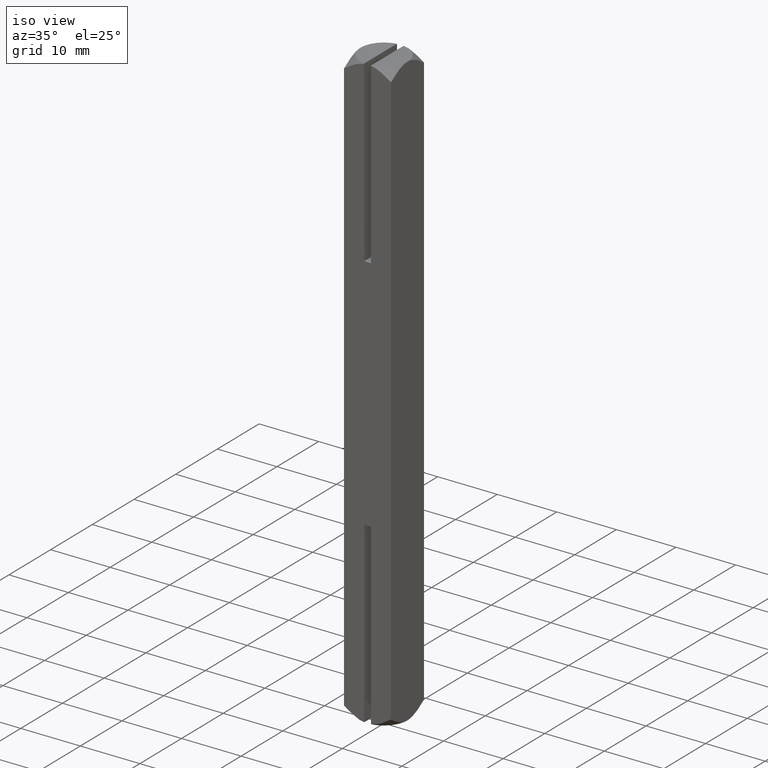
[diagram: clean part render]
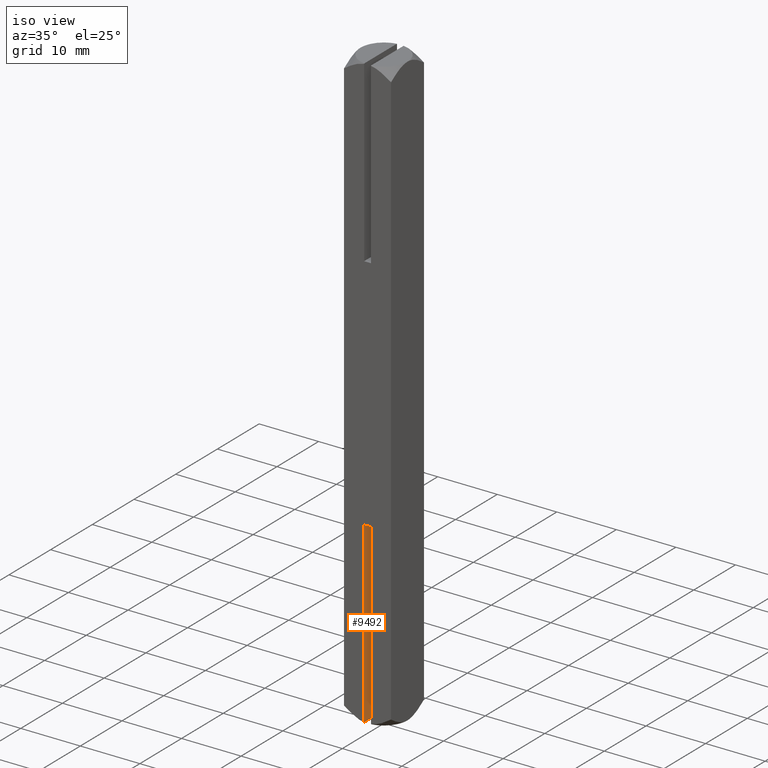
[diagram: same view with one face highlighted and labeled with its STEP entity id]
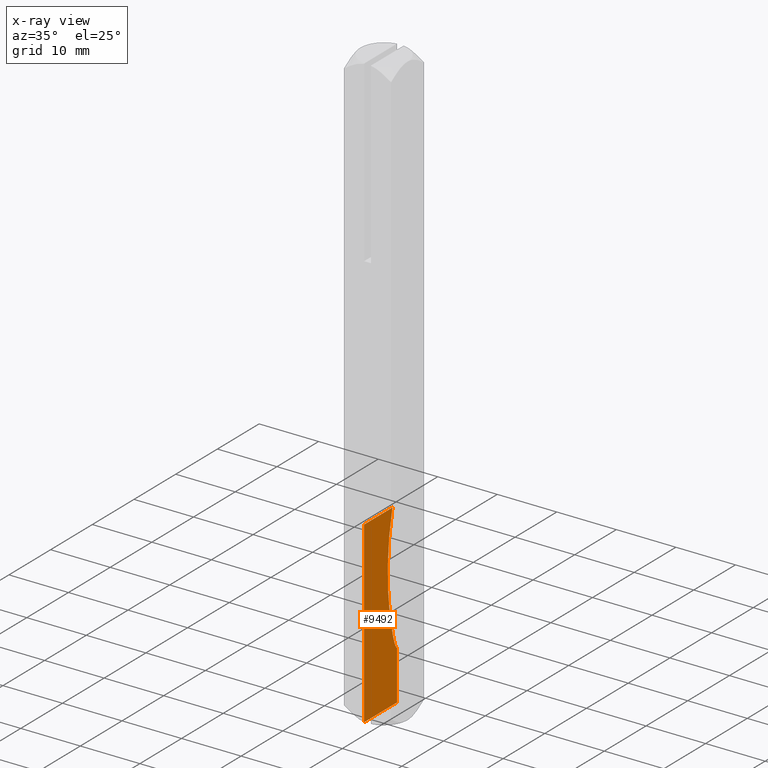
[diagram: x-ray of the same camera — body ghosted, the highlighted face saturated]
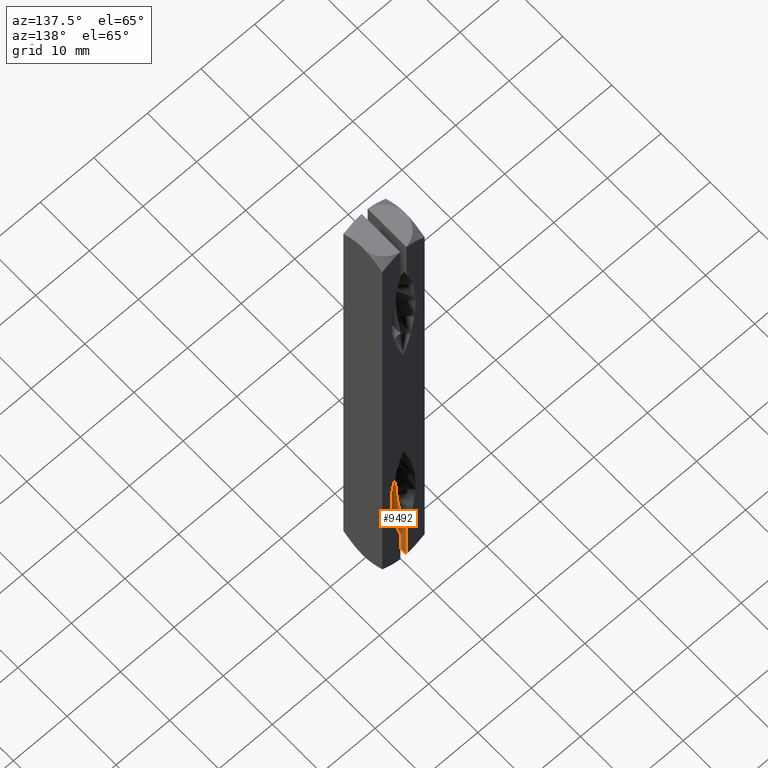
[diagram: same view with one face highlighted and labeled with its STEP entity id]
A machine part, iso view. The second image highlights one B-rep face of the part: STEP entity #9492.
The next image is the same camera in x-ray: the body ghosted, the highlighted face saturated — about 0% of this face is hidden behind the body in this view.
A second angle (auxiliary view) of the same face is appended — the face is thin or edge-on in the first view.
In plain terms, the highlighted planar face has unit normal (-1, -0, 0).
Its self-contained STEP definition (entity closure, byte-faithful):
#268 = FACE_OUTER_BOUND ( 'NONE', #10721, .T. ) ;
#554 = VECTOR ( 'NONE', #11653, 1000.000000000000000 ) ;
#727 = EDGE_CURVE ( 'NONE', #4632, #8570, #2596, .T. ) ;
#800 = CARTESIAN_POINT ( 'NONE',  ( -0.5750000000000002887, 3.935975654315071459, -49.97224620293719255 ) ) ;
#826 = CARTESIAN_POINT ( 'NONE',  ( -0.5750000000000002887, 1.790522158601205227, -31.89218784807994922 ) ) ;
#843 = CARTESIAN_POINT ( 'NONE',  ( -0.5749999999999999556, 3.949999999999999734, -49.95836812819619155 ) ) ;
#873 = CARTESIAN_POINT ( 'NONE',  ( -0.5749999999999999556, 2.999569653012168935, -39.64785277818430131 ) ) ;
#918 = CARTESIAN_POINT ( 'NONE',  ( -0.5750000000000010658, 10.00000000000000000, -50.00000000000000000 ) ) ;
#1087 = VERTEX_POINT ( 'NONE', #6215 ) ;
#1107 = EDGE_CURVE ( 'NONE', #7719, #1087, #5641, .T. ) ;
#1583 = LINE ( 'NONE', #11079, #8012 ) ;
#1757 = CARTESIAN_POINT ( 'NONE',  ( -0.5750000000000000666, 2.656006524776936217, -38.31868199677725073 ) ) ;
#1786 = CARTESIAN_POINT ( 'NONE',  ( -0.5750000000000000666, 1.717738489092452525, -30.14765667200343913 ) ) ;
#2242 = ORIENTED_EDGE ( 'NONE', *, *, #5367, .T. ) ;
#2366 = CARTESIAN_POINT ( 'NONE',  ( -0.5750000000000002887, 3.568300370325551807, -41.26436420200637656 ) ) ;
#2503 = CARTESIAN_POINT ( 'NONE',  ( -0.5750000000000001776, 2.832976762361322898, -20.00000000000000355 ) ) ;
#2583 = CARTESIAN_POINT ( 'NONE',  ( -0.5750000000000001776, 2.471219910511959661, -37.42595704450668848 ) ) ;
#2596 = LINE ( 'NONE', #9740, #11548 ) ;
#2606 = VERTEX_POINT ( 'NONE', #3558 ) ;
#2648 = CARTESIAN_POINT ( 'NONE',  ( -0.5750000000000000666, 2.001035175949065437, -24.57484465062620060 ) ) ;
#2678 = VERTEX_POINT ( 'NONE', #10123 ) ;
#2957 = CARTESIAN_POINT ( 'NONE',  ( -0.5749999999999992895, -3.949999999990744026, -49.95836812820535044 ) ) ;
#3459 = EDGE_CURVE ( 'NONE', #10817, #2678, #5707, .T. ) ;
#3558 = CARTESIAN_POINT ( 'NONE',  ( -0.5750000000000002887, 3.950000000000557066, -41.66519112057266483 ) ) ;
#3652 = DIRECTION ( 'NONE',  ( -1.000000000000000000, -1.246832498358330099E-16, 0.000000000000000000 ) ) ;
#3696 = VECTOR ( 'NONE', #11138, 1000.000000000000000 ) ;
#4310 = CARTESIAN_POINT ( 'NONE',  ( -0.5750000000000002887, 1.818738552955122989, -32.34657570468970533 ) ) ;
#4350 = AXIS2_PLACEMENT_3D ( 'NONE', #9019, #3652, #10891 ) ;
#4617 = ORIENTED_EDGE ( 'NONE', *, *, #9535, .F. ) ;
#4632 = VERTEX_POINT ( 'NONE', #2503 ) ;
#4815 = CARTESIAN_POINT ( 'NONE',  ( -0.5749999999999992895, -3.921950531116518590, -49.98612351355284744 ) ) ;
#4872 = CARTESIAN_POINT ( 'NONE',  ( -0.5749999999999990674, -3.950000000000000178, -50.00000000000000000 ) ) ;
#4996 = CARTESIAN_POINT ( 'NONE',  ( -0.5750000000000002887, 3.838175792654273000, -41.63303785578739280 ) ) ;
#5020 = ORIENTED_EDGE ( 'NONE', *, *, #7529, .T. ) ;
#5094 = EDGE_CURVE ( 'NONE', #2606, #4632, #5673, .T. ) ;
#5119 = CARTESIAN_POINT ( 'NONE',  ( -0.5750000000000001776, 3.752541703626187886, -41.55570475752237058 ) ) ;
#5164 = CARTESIAN_POINT ( 'NONE',  ( -0.5749999999999992895, -3.950000000000000178, -20.00000000000000355 ) ) ;
#5367 = EDGE_CURVE ( 'NONE', #1087, #2606, #1583, .T. ) ;
#5562 = DIRECTION ( 'NONE',  ( 0.000000000000000000, 0.000000000000000000, 1.000000000000000000 ) ) ;
#5632 = CARTESIAN_POINT ( 'NONE',  ( -0.5749999999999992895, -3.935975653505235705, -49.97224620373858528 ) ) ;
#5641 = B_SPLINE_CURVE_WITH_KNOTS ( 'NONE', 3,
 ( #8039, #9747, #800, #843 ),
 .UNSPECIFIED., .F., .F.,
 ( 4, 4 ),
 ( 0.004623978623840036863, 0.004683130948698034819 ),
 .UNSPECIFIED. ) ;
#5673 = B_SPLINE_CURVE_WITH_KNOTS ( 'NONE', 3,
 ( #5980, #10502, #4996, #5119, #8571, #6935, #2366, #9645, #8608, #7758, #873, #1757, #2583, #7986, #10671, #7880, #6241, #4310, #7090, #8867, #826, #11537, #11490, #1786, #7121, #8028, #9845, #2648, #8817, #10624, #6148, #9799 ),
 .UNSPECIFIED., .F., .F.,
 ( 4, 2, 2, 2, 2, 2, 2, 2, 2, 2, 2, 2, 2, 2, 2, 4 ),
 ( 0.04013997765228428938, 0.04031446014983714604, 0.04048894264739000270, 0.04083790764249572297, 0.04153583763270715656, 0.04293169761313001681, 0.04572341757397576506, 0.04851513753482152025, 0.04991099751524438743, 0.05025996251035010076, 0.05060892750545581409, 0.05130685749566724074, 0.05409857745651294042, 0.05689029741735863316, 0.05968201737820433284, 0.06247373733905002557 ),
 .UNSPECIFIED. ) ;
#5707 = B_SPLINE_CURVE_WITH_KNOTS ( 'NONE', 3,
 ( #2957, #5632, #4815, #6738 ),
 .UNSPECIFIED., .F., .F.,
 ( 4, 4 ),
 ( 0.004611646260380576103, 0.004670836886331646357 ),
 .UNSPECIFIED. ) ;
#5980 = CARTESIAN_POINT ( 'NONE',  ( -0.5750000000000002887, 3.950000000000557066, -41.66519112057266483 ) ) ;
#6115 = PLANE ( 'NONE',  #4350 ) ;
#6148 = CARTESIAN_POINT ( 'NONE',  ( -0.5750000000000001776, 2.607124633328429475, -20.90289993090307519 ) ) ;
#6215 = CARTESIAN_POINT ( 'NONE',  ( -0.5749999999999999556, 3.949999999999999734, -49.95836812819619155 ) ) ;
#6241 = CARTESIAN_POINT ( 'NONE',  ( -0.5750000000000001776, 1.858727775207912103, -32.91580771812270001 ) ) ;
#6687 = ORIENTED_EDGE ( 'NONE', *, *, #1107, .T. ) ;
#6738 = CARTESIAN_POINT ( 'NONE',  ( -0.5749999999999992895, -3.907924641033908575, -50.00000000000000000 ) ) ;
#6829 = ORIENTED_EDGE ( 'NONE', *, *, #727, .T. ) ;
#6935 = CARTESIAN_POINT ( 'NONE',  ( -0.5750000000000005107, 3.620210601659142213, -41.36696449408719189 ) ) ;
#6938 = DIRECTION ( 'NONE',  ( 1.246832498358330099E-16, -1.000000000000000000, 0.000000000000000000 ) ) ;
#7050 = CARTESIAN_POINT ( 'NONE',  ( -0.5750000000000002887, 3.907924641033908575, -50.00000000000000000 ) ) ;
#7090 = CARTESIAN_POINT ( 'NONE',  ( -0.5750000000000002887, 1.811202399092227244, -32.23266033241277029 ) ) ;
#7121 = CARTESIAN_POINT ( 'NONE',  ( -0.5750000000000001776, 1.713741310024385456, -29.21709193567127016 ) ) ;
#7262 = ORIENTED_EDGE ( 'NONE', *, *, #3459, .T. ) ;
#7529 = EDGE_CURVE ( 'NONE', #8570, #10817, #8032, .T. ) ;
#7719 = VERTEX_POINT ( 'NONE', #7050 ) ;
#7758 = CARTESIAN_POINT ( 'NONE',  ( -0.5750000000000002887, 3.123804794351551450, -40.08805091065506332 ) ) ;
#7842 = ORIENTED_EDGE ( 'NONE', *, *, #5094, .T. ) ;
#7880 = CARTESIAN_POINT ( 'NONE',  ( -0.5750000000000001776, 1.898099659623143420, -33.37009079281760648 ) ) ;
#7986 = CARTESIAN_POINT ( 'NONE',  ( -0.5750000000000001776, 2.161638308738178527, -35.63154529835278339 ) ) ;
#8012 = VECTOR ( 'NONE', #5562, 1000.000000000000000 ) ;
#8028 = CARTESIAN_POINT ( 'NONE',  ( -0.5750000000000001776, 1.767104975694737679, -27.35570147856964951 ) ) ;
#8032 = LINE ( 'NONE', #4872, #3696 ) ;
#8039 = CARTESIAN_POINT ( 'NONE',  ( -0.5750000000000002887, 3.907924641033908575, -50.00000000000000000 ) ) ;
#8570 = VERTEX_POINT ( 'NONE', #5164 ) ;
#8571 = CARTESIAN_POINT ( 'NONE',  ( -0.5750000000000003997, 3.716727400158926997, -41.50931508105428236 ) ) ;
#8608 = CARTESIAN_POINT ( 'NONE',  ( -0.5750000000000000666, 3.345022024219240997, -40.73665252974367235 ) ) ;
#8817 = CARTESIAN_POINT ( 'NONE',  ( -0.5750000000000001776, 2.119995233940013435, -23.65323532807944673 ) ) ;
#8867 = CARTESIAN_POINT ( 'NONE',  ( -0.5750000000000005107, 1.797053306296788167, -32.00469167351272404 ) ) ;
#9019 = CARTESIAN_POINT ( 'NONE',  ( -0.5750000000000010658, 10.00000000000000000, -20.00000000000000355 ) ) ;
#9492 = ADVANCED_FACE ( 'NONE', ( #268 ), #6115, .F. ) ;
#9535 = EDGE_CURVE ( 'NONE', #7719, #2678, #9545, .T. ) ;
#9545 = LINE ( 'NONE', #918, #554 ) ;
#9645 = CARTESIAN_POINT ( 'NONE',  ( -0.5750000000000003997, 3.423725090174374763, -40.95122227692382921 ) ) ;
#9740 = CARTESIAN_POINT ( 'NONE',  ( -0.5750000000000010658, 10.00000000000000000, -20.00000000000000355 ) ) ;
#9747 = CARTESIAN_POINT ( 'NONE',  ( -0.5750000000000002887, 3.921950537753111643, -49.98612350698697071 ) ) ;
#9799 = CARTESIAN_POINT ( 'NONE',  ( -0.5750000000000001776, 2.832976762361322898, -20.00000000000000355 ) ) ;
#9845 = CARTESIAN_POINT ( 'NONE',  ( -0.5750000000000001776, 1.824528500665346886, -26.42545832768125535 ) ) ;
#10123 = CARTESIAN_POINT ( 'NONE',  ( -0.5749999999999992895, -3.907924641033908575, -50.00000000000000000 ) ) ;
#10502 = CARTESIAN_POINT ( 'NONE',  ( -0.5750000000000000666, 3.892085402762736734, -41.66519112057047636 ) ) ;
#10624 = CARTESIAN_POINT ( 'NONE',  ( -0.5750000000000000666, 2.423546255826428020, -21.81791955638477276 ) ) ;
#10671 = CARTESIAN_POINT ( 'NONE',  ( -0.5750000000000000666, 2.038517818991956609, -34.72960835983197825 ) ) ;
#10721 = EDGE_LOOP ( 'NONE', ( #6829, #5020, #7262, #4617, #6687, #2242, #7842 ) ) ;
#10817 = VERTEX_POINT ( 'NONE', #10976 ) ;
#10891 = DIRECTION ( 'NONE',  ( 1.246832498358330099E-16, -1.000000000000000000, 0.000000000000000000 ) ) ;
#10976 = CARTESIAN_POINT ( 'NONE',  ( -0.5749999999999992895, -3.949999999990744026, -49.95836812820535044 ) ) ;
#11079 = CARTESIAN_POINT ( 'NONE',  ( -0.5749999999999999556, 3.949999999999999734, -50.00000000000000000 ) ) ;
#11138 = DIRECTION ( 'NONE',  ( 0.000000000000000000, 0.000000000000000000, -1.000000000000000000 ) ) ;
#11490 = CARTESIAN_POINT ( 'NONE',  ( -0.5750000000000001776, 1.761122091421702285, -31.31069931396687878 ) ) ;
#11537 = CARTESIAN_POINT ( 'NONE',  ( -0.5750000000000001776, 1.771722377317427322, -31.54329966053413159 ) ) ;
#11548 = VECTOR ( 'NONE', #6938, 1000.000000000000000 ) ;
#11653 = DIRECTION ( 'NONE',  ( 1.246832498358330099E-16, -1.000000000000000000, 0.000000000000000000 ) ) ;